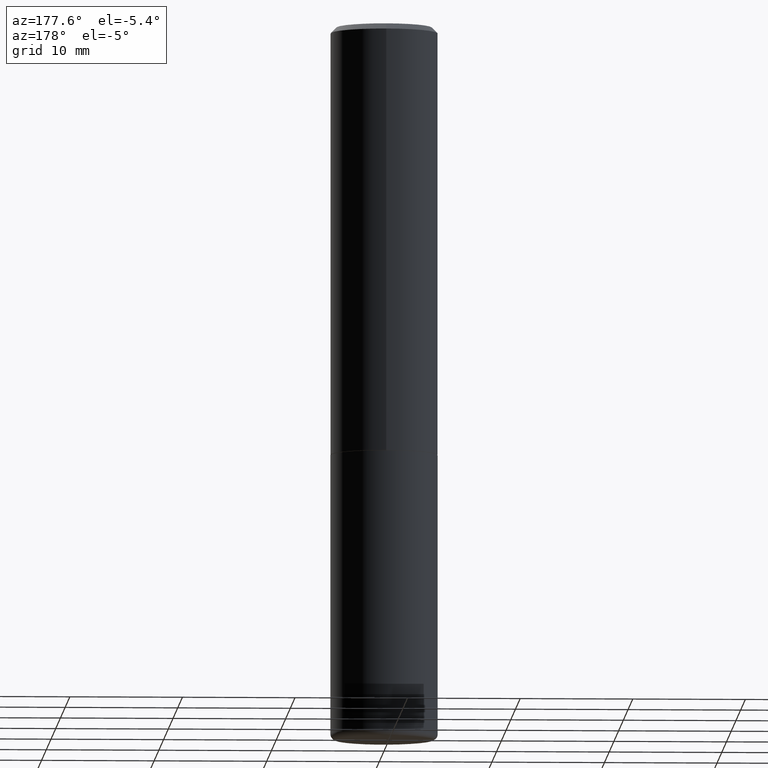
[diagram: clean part render]
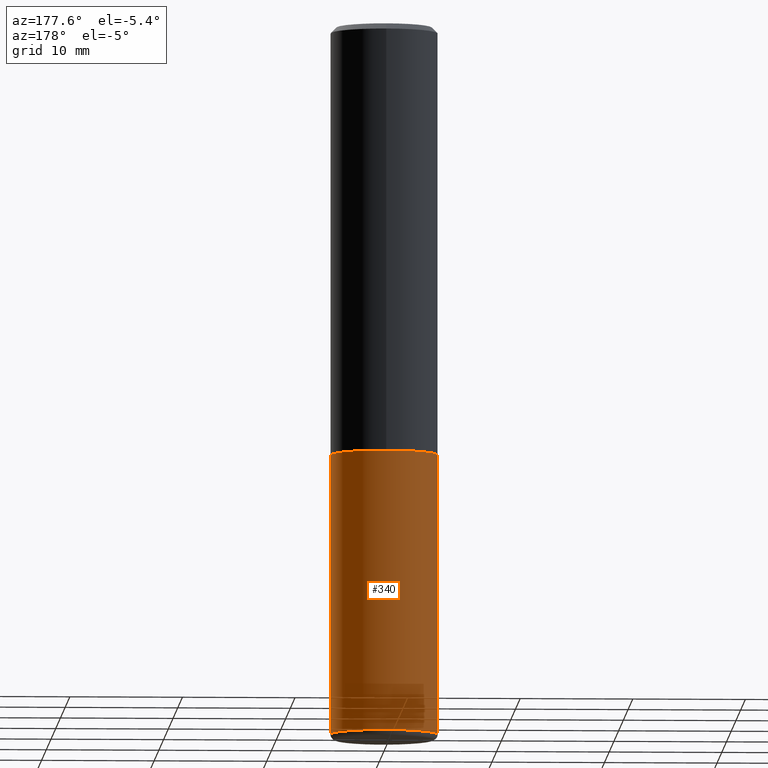
[diagram: same view with one face highlighted and labeled with its STEP entity id]
A machine part, auxiliary view. The second image highlights one B-rep face of the part: STEP entity #340.
In plain terms, the highlighted cylindrical surface (partial cylindrical patch) has radius 4.7625 mm, axis along (-0, 0, 1).
Its self-contained STEP definition (entity closure, byte-faithful):
#9 = CARTESIAN_POINT ( 'NONE',  ( 0.1875000000000000278, -6.546527510330893974E-15, -1.500000000000000222 ) ) ;
#11 = DIRECTION ( 'NONE',  ( -2.445468806185136597E-29, 3.491481338843145583E-15, 1.000000000000000000 ) ) ;
#13 = CARTESIAN_POINT ( 'NONE',  ( 6.064762639339139522E-29, -8.658873720331001644E-15, -2.480000000000000426 ) ) ;
#20 = EDGE_LOOP ( 'NONE', ( #137, #358, #199, #298 ) ) ;
#29 = AXIS2_PLACEMENT_3D ( 'NONE', #183, #11, #47 ) ;
#36 = LINE ( 'NONE', #359, #58 ) ;
#43 = EDGE_CURVE ( 'NONE', #330, #201, #307, .T. ) ;
#47 = DIRECTION ( 'NONE',  ( 1.000000000000000000, -6.982962677686265922E-15, 4.876176775795935793E-29 ) ) ;
#58 = VECTOR ( 'NONE', #77, 39.37007874015748143 ) ;
#68 = AXIS2_PLACEMENT_3D ( 'NONE', #13, #406, #317 ) ;
#75 = CARTESIAN_POINT ( 'NONE',  ( -0.1875000000000001110, -7.326606090780813796E-15, -2.480000000000000426 ) ) ;
#77 = DIRECTION ( 'NONE',  ( -2.445468806185136877E-29, 3.491481338843145188E-15, 1.000000000000000000 ) ) ;
#81 = LINE ( 'NONE', #341, #337 ) ;
#86 = FACE_OUTER_BOUND ( 'NONE', #20, .T. ) ;
#130 = CARTESIAN_POINT ( 'NONE',  ( -0.1875000000000000278, -5.615780234747672457E-15, -1.500000000000000222 ) ) ;
#136 = AXIS2_PLACEMENT_3D ( 'NONE', #210, #418, #369 ) ;
#137 = ORIENTED_EDGE ( 'NONE', *, *, #43, .T. ) ;
#143 = VERTEX_POINT ( 'NONE', #130 ) ;
#183 = CARTESIAN_POINT ( 'NONE',  ( 0.000000000000000000, 0.000000000000000000, 0.000000000000000000 ) ) ;
#199 = ORIENTED_EDGE ( 'NONE', *, *, #200, .F. ) ;
#200 = EDGE_CURVE ( 'NONE', #334, #143, #324, .T. ) ;
#201 = VERTEX_POINT ( 'NONE', #75 ) ;
#210 = CARTESIAN_POINT ( 'NONE',  ( 3.668203209277704895E-29, -5.237222008264718177E-15, -1.500000000000000222 ) ) ;
#254 = EDGE_CURVE ( 'NONE', #201, #143, #36, .T. ) ;
#289 = DIRECTION ( 'NONE',  ( -2.445468806185136877E-29, 3.491481338843145188E-15, 1.000000000000000000 ) ) ;
#298 = ORIENTED_EDGE ( 'NONE', *, *, #408, .F. ) ;
#307 = CIRCLE ( 'NONE', #68, 0.1875000000000000278 ) ;
#317 = DIRECTION ( 'NONE',  ( 1.000000000000000000, -6.982962677686261189E-15, 0.000000000000000000 ) ) ;
#324 = CIRCLE ( 'NONE', #136, 0.1875000000000000278 ) ;
#330 = VERTEX_POINT ( 'NONE', #339 ) ;
#334 = VERTEX_POINT ( 'NONE', #9 ) ;
#337 = VECTOR ( 'NONE', #289, 39.37007874015748143 ) ;
#339 = CARTESIAN_POINT ( 'NONE',  ( 0.1875000000000001110, -9.968179222397176653E-15, -2.480000000000000426 ) ) ;
#340 = ADVANCED_FACE ( 'NONE', ( #86 ), #345, .T. ) ;
#341 = CARTESIAN_POINT ( 'NONE',  ( 0.1875000000000000278, -1.309305502066175008E-15, 9.142831454617381013E-30 ) ) ;
#345 = CYLINDRICAL_SURFACE ( 'NONE', #29, 0.1875000000000000278 ) ;
#358 = ORIENTED_EDGE ( 'NONE', *, *, #254, .T. ) ;
#359 = CARTESIAN_POINT ( 'NONE',  ( -0.1875000000000000278, 1.332267629550188046E-15, -9.223003294227947991E-30 ) ) ;
#369 = DIRECTION ( 'NONE',  ( 1.000000000000000000, -6.982962677686266711E-15, 0.000000000000000000 ) ) ;
#406 = DIRECTION ( 'NONE',  ( -2.445468806185136597E-29, 3.491481338843145583E-15, 1.000000000000000000 ) ) ;
#408 = EDGE_CURVE ( 'NONE', #330, #334, #81, .T. ) ;
#418 = DIRECTION ( 'NONE',  ( -2.445468806185136597E-29, 3.491481338843145583E-15, 1.000000000000000000 ) ) ;